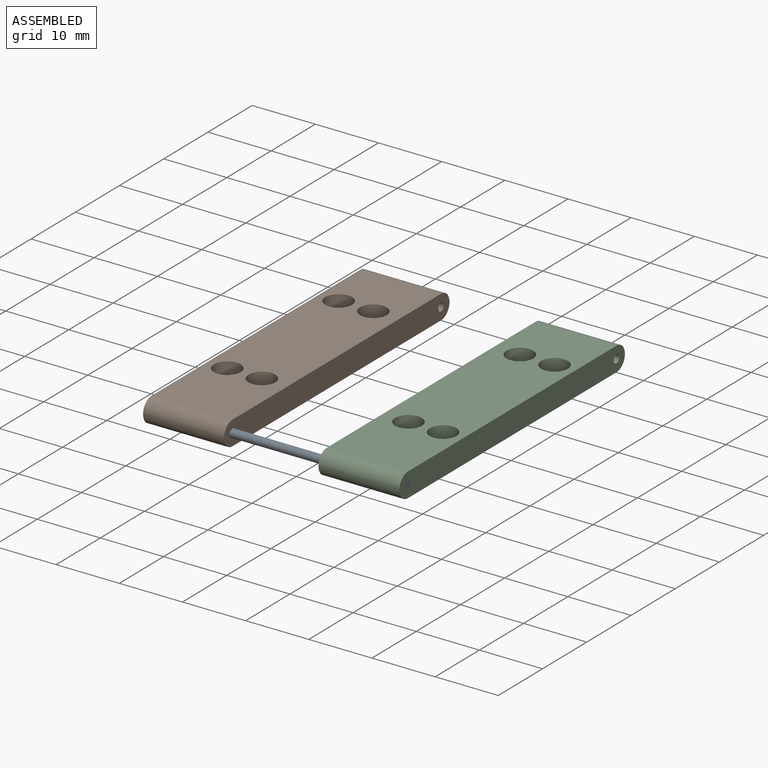
[diagram: assembled view]
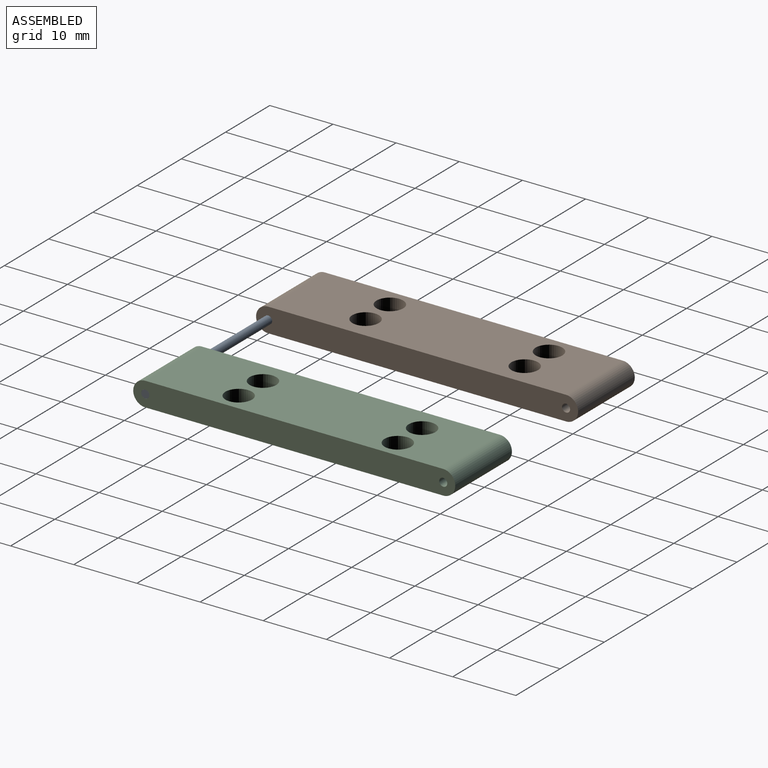
[diagram: assembled view, second angle]
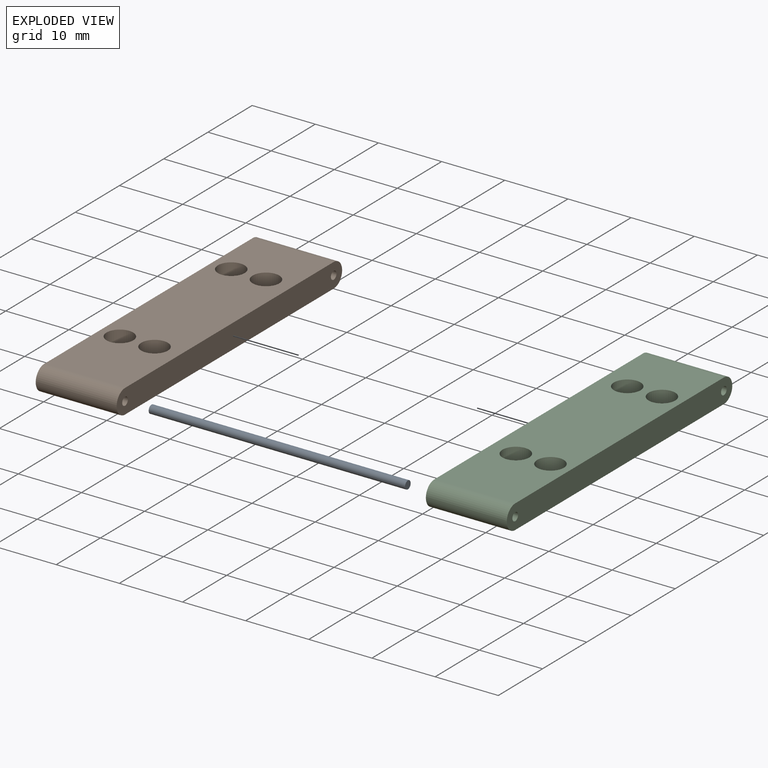
[diagram: exploded view]
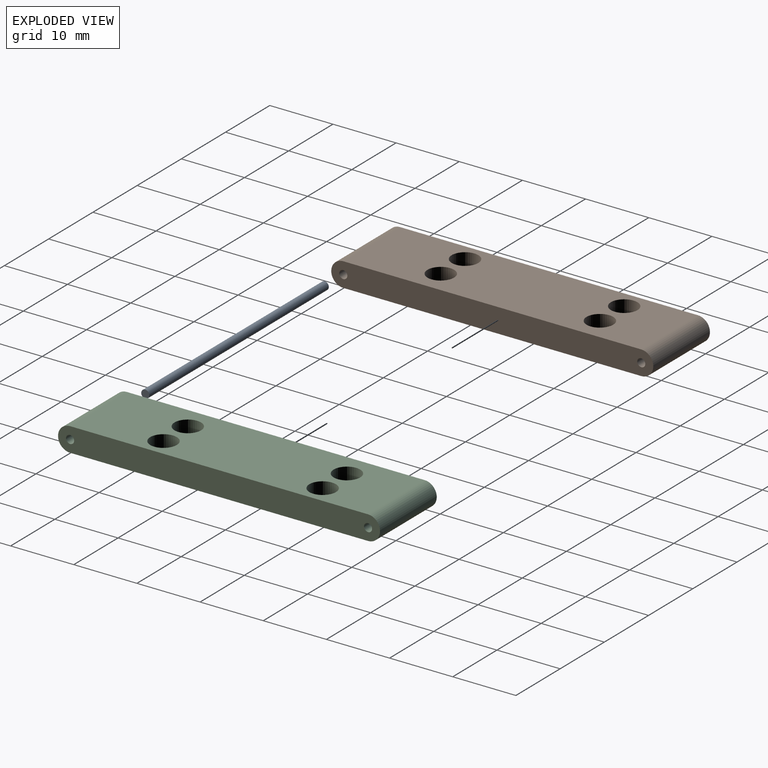
[diagram: exploded view, second angle]
ASSEMBLY  parts=3 mates=2
PART A: 3 faces, bbox 40.6x1.3x1.3 mm
  f0: cylinder r=0.64mm len=40.59mm, axis (1,0,0), area 162.8mm2, adj f1,f2
  f1: plane 1.28x1.28mm, normal (-1,0,0), area 1.3mm2, adj f0
  f2: plane 1.28x1.28mm, normal (1,0,0), area 1.3mm2, adj f0
PART B: 12 faces, bbox 12.8x51x3.8 mm
  f0: plane 50.99x3.81mm, normal (1,0,0), area 188.6mm2, adj f2,f3,f8,f9,f10,f11
  f1: plane 50.99x3.81mm, normal (-1,0,0), area 188.6mm2, adj f2,f3,f8,f9,f10,f11
  f2: plane 47.18x12.81mm, normal (0,0,1), area 548.7mm2, adj f0,f1,f4,f5,f6,f7,f8,f9
  f3: plane 47.18x12.81mm, normal (0,0,-1), area 548.7mm2, adj f0,f1,f4,f5,f6,f7,f8,f9
  f4: cylinder r=2.11mm len=4.22mm, axis (0,0,-1), area 50.5mm2, adj f2,f3
  f5: cylinder r=2.11mm len=4.22mm, axis (0,0,-1), area 50.5mm2, adj f2,f3
  f6: cylinder r=2.11mm len=4.22mm, axis (0,0,-1), area 50.5mm2, adj f2,f3
  f7: cylinder r=2.11mm len=4.22mm, axis (0,0,-1), area 50.5mm2, adj f2,f3
  f8: cylinder r=1.91mm len=12.81mm, axis (1,0,0), area 76.7mm2, adj f0,f1,f2,f3
  f9: cylinder r=1.91mm len=12.81mm, axis (-1,0,0), area 76.7mm2, adj f0,f1,f2,f3
  f10: cylinder r=0.64mm len=12.81mm, axis (-1,0,0), area 51.3mm2, adj f0,f1
  f11: cylinder r=0.64mm len=12.81mm, axis (-1,0,0), area 51.7mm2, adj f0,f1
PART C: 12 faces, bbox 12.8x51x3.8 mm
  f0: plane 50.99x3.81mm, normal (1,0,0), area 188.6mm2, adj f2,f3,f8,f9,f10,f11
  f1: plane 50.99x3.81mm, normal (-1,0,0), area 188.6mm2, adj f2,f3,f8,f9,f10,f11
  f2: plane 47.18x12.81mm, normal (0,0,1), area 548.7mm2, adj f0,f1,f4,f5,f6,f7,f8,f9
  f3: plane 47.18x12.81mm, normal (0,0,-1), area 548.7mm2, adj f0,f1,f4,f5,f6,f7,f8,f9
  f4: cylinder r=2.11mm len=4.22mm, axis (0,0,-1), area 50.5mm2, adj f2,f3
  f5: cylinder r=2.11mm len=4.22mm, axis (0,0,-1), area 50.5mm2, adj f2,f3
  f6: cylinder r=2.11mm len=4.22mm, axis (0,0,-1), area 50.5mm2, adj f2,f3
  f7: cylinder r=2.11mm len=4.22mm, axis (0,0,-1), area 50.5mm2, adj f2,f3
  f8: cylinder r=1.91mm len=12.81mm, axis (1,0,0), area 76.7mm2, adj f0,f1,f2,f3
  f9: cylinder r=1.91mm len=12.81mm, axis (-1,0,0), area 76.7mm2, adj f0,f1,f2,f3
  f10: cylinder r=0.64mm len=12.81mm, axis (-1,0,0), area 51.3mm2, adj f0,f1
  f11: cylinder r=0.64mm len=12.81mm, axis (-1,0,0), area 51.7mm2, adj f0,f1
PLACE A t=(6.88,4.03,0.01)mm
PLACE B t=(0.31,0.21,0.05)mm
PLACE C rot(axis=(0,-1,0),180deg) t=(-11.64,0.21,3.86)mm
MATE fastened A.f0 <-> B.f8  axis (-1,0,0) through (-33.71,-48.87,1.96)mm
MATE slider C.f8 <-> A.f0  axis (-1,0,0) through (6.88,-48.87,1.96)mm
